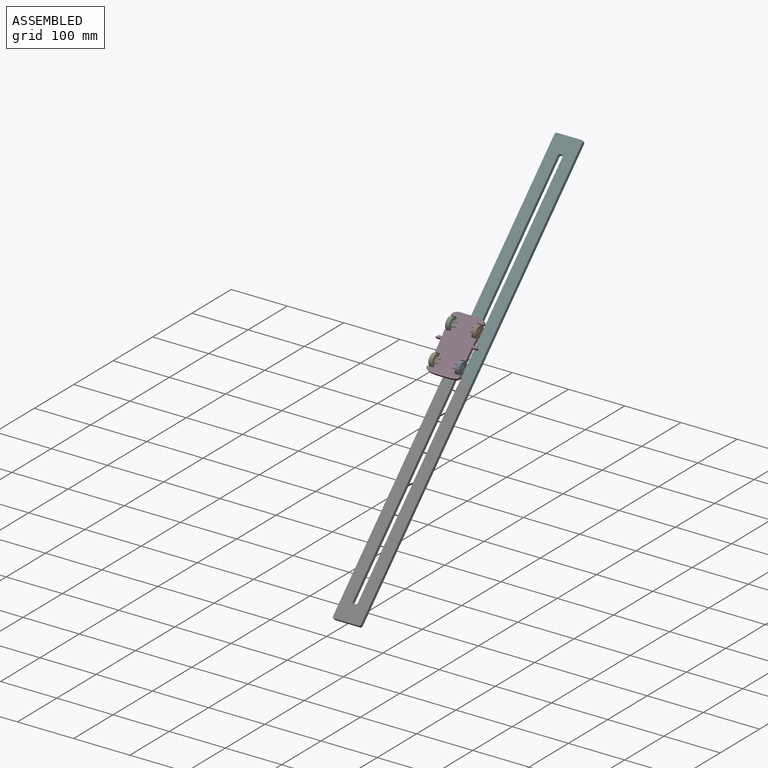
[diagram: assembled view]
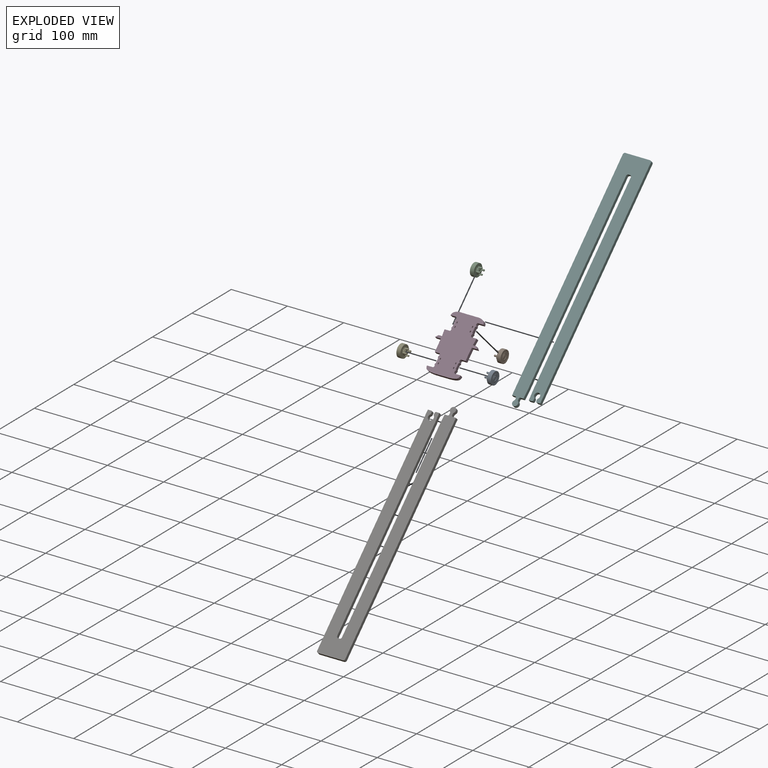
[diagram: exploded view]
GUIDED TOUR — MATED ASSEMBLY WITH SUBASSEMBLIES (Onshape document 0712574c2005b24f1d2a0907, AutoMate assembly 0712574c2005b24f1d2a0907_b35cb30149ad5a018dd089fb_e8988d4860a6e66e66fac730_default)

This assembly has 11 component occurrences arranged in 7 top-level units: 3 individual components plus 4 subassemblies (S0, S1, S2, S3). The tour has two levels: first the top level, where each subassembly is treated as one rigid unit; then each subassembly is toured internally in its own section (nesting deeper than one subassembly level is flattened into its subassembly's section).

Components are labeled P0..P10 across the whole record; subassembly units are labeled S0..S3. A mate is a constraint between two units; its type names the relative motion it leaves free:
  FASTENED — locks the two components together rigidly (no relative motion),
  PLANAR — leaves sliding in the plane through the listed point (normal = the listed direction) and rotation about that normal free,
  REVOLUTE — leaves rotation about the listed axis free (a hinge).
Axis/direction vectors are unit vectors and 'through' points are millimeter coordinates, both in the assembly's world frame.

TOP-LEVEL MATES (between units; each subassembly's internal mates are listed in its own section)
  1. FASTENED "Fastened 1": P10 <-> P7, direction (0.000, 0.708, 0.706) through (-13.13, -57.40, -266.34) mm
  2. PLANAR "Planar 7": P3 <-> P7, direction (1.000, 0.000, 0.000) through (-39.44, -55.57, -253.22) mm
  3. PLANAR "Planar 4": S2 <-> P3, direction (0.000, 0.708, 0.706) through (-74.77, -5.64, -203.47) mm
  4. PLANAR "Planar 3": P3 <-> S2, direction (-1.000, 0.000, 0.000) through (-76.07, -7.89, -201.22) mm
  5. PLANAR "Planar 6": P3 <-> S2, direction (0.000, -0.706, 0.708) through (-71.07, -9.66, -202.99) mm
  6. PLANAR "Planar 5": P3 <-> S1, direction (0.000, 0.706, -0.708) through (-58.26, -28.17, -230.39) mm
  7. PLANAR "Planar 2": S1 <-> P3, direction (0.000, 0.708, 0.706) through (-44.69, -3.40, -205.72) mm
  8. PLANAR "Planar 1": S1 <-> P3, direction (-1.000, 0.000, 0.000) through (-40.44, -9.19, -207.00) mm

TOP-LEVEL ASSEMBLY ORDER
  1. P10 — the base component [order verified]
  2. P7 [order verified]
  3. S0 [order verified]
  4. S3 [order verified]
  5. S1 [order verified]
  6. P3 [order verified]
  7. S2 [order verified]
(P3, P7 verified with a relaxed clearance tolerance: the source model stores slight part interference there.)
Order-tag legend:
  [order verified] — this step's position reverses a verified removal order: the component was checked to insert without passing through the ones already placed.

Of the 11 component occurrences, 6 carry the full construction recipe — the FeatureScript program that regenerates the part's solid from scratch; the rest are supplied as boundary geometry only. Each toured unit is shown spotlighted twice — assembled, then exploded with a leader line back to its socket (green = recipe-attached component, orange = geometry-only, blue = subassembly unit; the rest desaturated gray).
NOTE — document 2 of 2 of this assembly tour. The two overview renders and the header above are repeated from document 1; the component sections below continue where the previous document stopped.
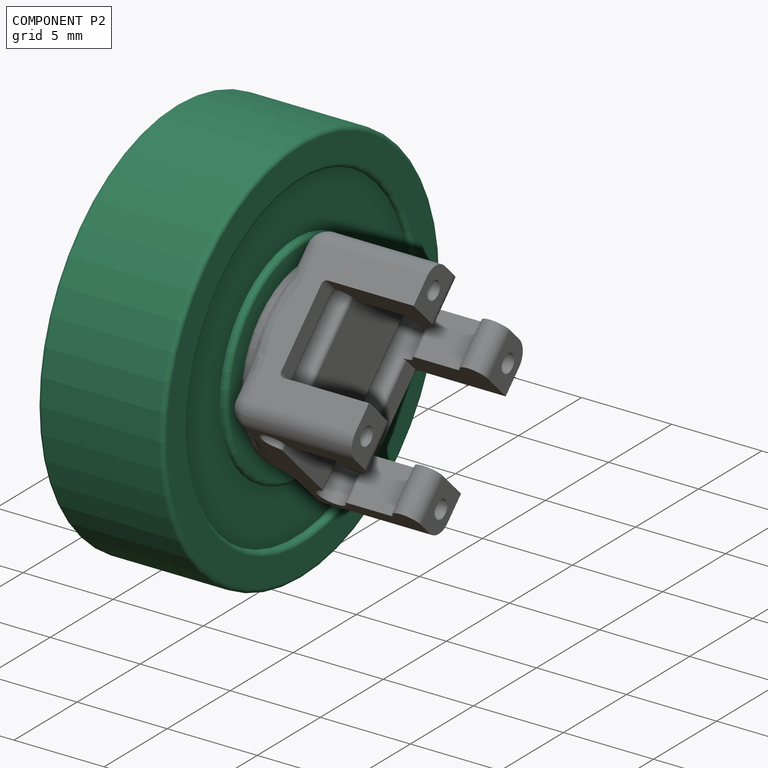
[diagram: component P2 — assembled]
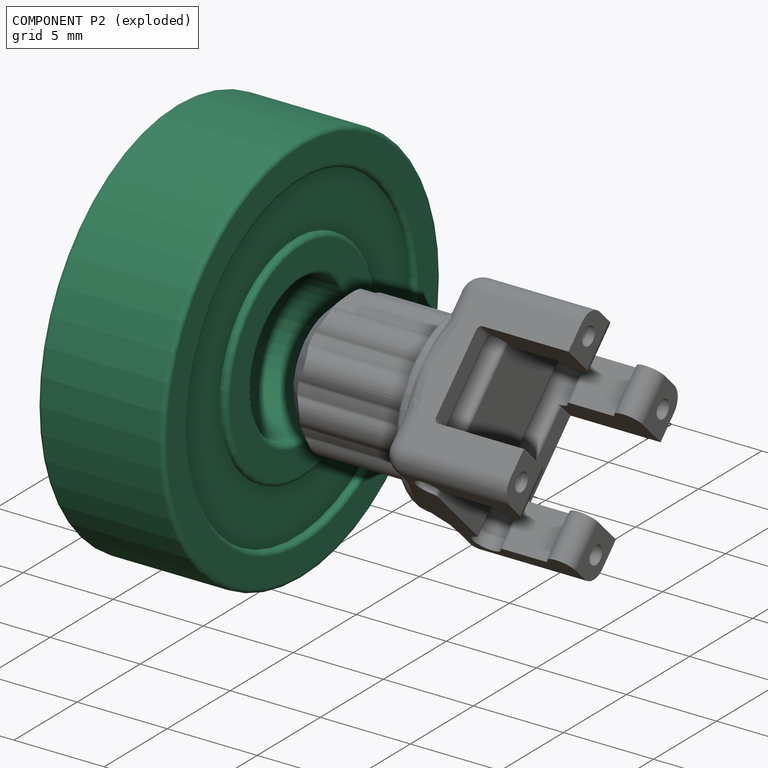
[diagram: component P2 — exploded]
COMPONENT P2 — recipe-attached (CADFS 00933879, mesh-verified: the recipe's output STEP matches this component's geometry to below the mesh-comparison resolution (tessellation chordal tolerance ~0.0478 mm)).
Held by: REVOLUTE mate "Revolute 1" to P5; REVOLUTE mate "Revolute 1" to P5.
Construction recipe (FeatureScript — the CAD program that rebuilds this solid; sketch coordinates are in the units given by the * unit suffixes, e.g. mm):

FeatureScript 1511;
import(path : "onshape/std/geometry.fs", version : "1511.0");
import(path : "onshape/std/common.fs", version : "1511.0");
const mm = millimeter;
const VERTEX = EntityType.VERTEX;
const EDGE = EntityType.EDGE;
const FACE = EntityType.FACE;
const BODY = EntityType.BODY;
function v(x, y){return vector(x, y);}
function OD(order){return orderDisambiguation(order);}
function OSD(set){return originalSetDisambiguation(set);}
function TD(topology){return topologyDisambiguation(topology);}
function TDD(query){return trueDependencyDisambiguation(query);}
function sQuery(a, b, c) {return sketchEntityQuery(a, b, c);}

annotation { "Feature Type Name" : "Feature", "Feature Type Description" : "" }
export const myFeature = defineFeature(function(context is Context, id is Id, definition is map)
    precondition{}
    {
        {
            var Q0;
            Q0=qCreatedBy(makeId("Top.planeOp"),FACE);
            var sketch = newSketch(context, id + "F0", { "sketchPlane" : qUnion([Q0])});
            skLineSegment(sketch, "E0", {"start": v(0, 63.35) * mm, "end": v(0, -63.35) * mm, "construction": true});
            skSolve(sketch);
        }
        {
            assignVariable(context, id + "F1", {"name" : "RadiusEdge", "anyValue" : .25});
        }
        {
            var Q0;
            Q0=qCreatedBy(makeId("Right.planeOp"),FACE);
            var sketch = newSketch(context, id + "F2", { "sketchPlane" : qUnion([Q0])});
            skLineSegment(sketch, "E1.bottom", {"start": v(3.5, 9) * mm, "end": v(3.12, 9) * mm});
            skLineSegment(sketch, "E1.top", {"start": v(3.5, 11) * mm, "end": v(-3.5, 11) * mm});
            skLineSegment(sketch, "E1.left", {"start": v(3.5, 9) * mm, "end": v(3.5, 11) * mm});
            skLineSegment(sketch, "E1.right", {"start": v(-3.5, 9) * mm, "end": v(-3.5, 11) * mm});
            skPoint(sketch, "E1.middle", {"position": v(0, 10) * mm});
            skLineSegment(sketch, "E2.left", {"start": v(3.12, 9) * mm, "end": v(3.13, 6) * mm});
            skLineSegment(sketch, "E2.right", {"start": v(-3.13, 9) * mm, "end": v(-3.12, 6) * mm});
            skPoint(sketch, "E2.middle", {"position": v(0, 7.5) * mm});
            skLineSegment(sketch, "E3.trimOffspring", {"start": v(-3.13, 9) * mm, "end": v(-3.5, 9) * mm});
            skLineSegment(sketch, "E4.bottom", {"start": v(3.5, 6) * mm, "end": v(3.13, 6) * mm});
            skLineSegment(sketch, "E4.top", {"start": v(3.5, 4) * mm, "end": v(-3.5, 4) * mm});
            skLineSegment(sketch, "E4.left", {"start": v(3.5, 6) * mm, "end": v(3.5, 4) * mm});
            skLineSegment(sketch, "E4.right", {"start": v(-3.5, 6) * mm, "end": v(-3.5, 4) * mm});
            skPoint(sketch, "E4.middle", {"position": v(0, 5) * mm});
            skLineSegment(sketch, "E5.trimOffspring", {"start": v(-3.12, 6) * mm, "end": v(-3.5, 6) * mm});
            skSolve(sketch);
        }
        {
            var Q0;
            Q0 = qSketchRegion(id + "F2", true);
            var Q1;
            Q1=sQuery(id+"F0.wireOp",EDGE,"E0");
            revolve(context, id + "F3", {"surfaceOperationType" : NewSurfaceOperationType.NEW, "entities" : qUnion([Q0]), "axis" : qUnion([Q1]), "revolveType" : RevolveType.FULL});
        }
        {
            var Q0;
            Q0=makeQuery(id+"F3.opRevolve","SWEPT_EDGE",EDGE,{"disambiguationData":[OSD([sQuery(id+"F2.wireOp",EDGE,"E1.top"),sQuery(id+"F2.wireOp",EDGE,"E1.right")])]});
            var Q1;
            Q1=makeQuery(id+"F3.opRevolve","SWEPT_EDGE",EDGE,{"disambiguationData":[OSD([sQuery(id+"F2.wireOp",EDGE,"E1.right"),sQuery(id+"F2.wireOp",EDGE,"E3.trimOffspring")])]});
            var Q2;
            Q2=makeQuery(id+"F3.opRevolve","SWEPT_EDGE",EDGE,{"disambiguationData":[OSD([sQuery(id+"F2.wireOp",EDGE,"E4.right"),sQuery(id+"F2.wireOp",EDGE,"E5.trimOffspring")])]});
            var Q3;
            Q3=makeQuery(id+"F3.opRevolve","SWEPT_EDGE",EDGE,{"disambiguationData":[OSD([sQuery(id+"F2.wireOp",EDGE,"E4.top"),sQuery(id+"F2.wireOp",EDGE,"E4.right")])]});
            var Q4;
            Q4=makeQuery(id+"F3.opRevolve","SWEPT_EDGE",EDGE,{"disambiguationData":[OSD([sQuery(id+"F2.wireOp",EDGE,"E4.top"),sQuery(id+"F2.wireOp",EDGE,"E4.left")])]});
            var Q5;
            Q5=makeQuery(id+"F3.opRevolve","SWEPT_EDGE",EDGE,{"disambiguationData":[OSD([sQuery(id+"F2.wireOp",EDGE,"E4.bottom"),sQuery(id+"F2.wireOp",EDGE,"E4.left")])]});
            var Q6;
            Q6=makeQuery(id+"F3.opRevolve","SWEPT_EDGE",EDGE,{"disambiguationData":[OSD([sQuery(id+"F2.wireOp",EDGE,"E1.bottom"),sQuery(id+"F2.wireOp",EDGE,"E1.left")])]});
            var Q7;
            Q7=makeQuery(id+"F3.opRevolve","SWEPT_EDGE",EDGE,{"disambiguationData":[OSD([sQuery(id+"F2.wireOp",EDGE,"E1.top"),sQuery(id+"F2.wireOp",EDGE,"E1.left")])]});
            fillet(context, id + "F4", {"entities" : qUnion([Q0, Q1, Q2, Q3, Q4, Q5, Q6, Q7]), "radius" : (getVariable(context, 'RadiusEdge')) * mm, "tangentPropagation" : true, "allowEdgeOverflow" : false});
        }
    });
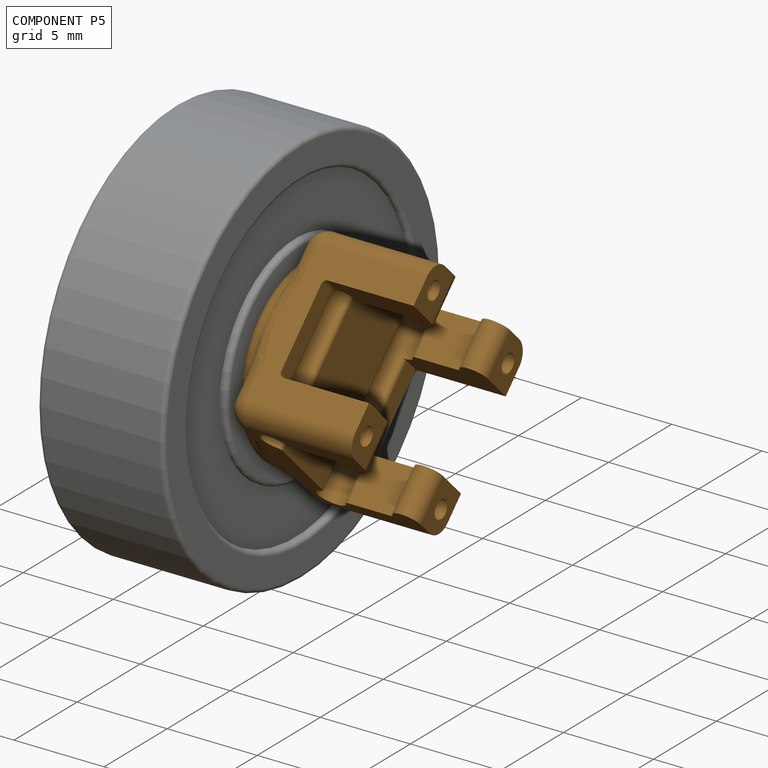
[diagram: component P5 — assembled]
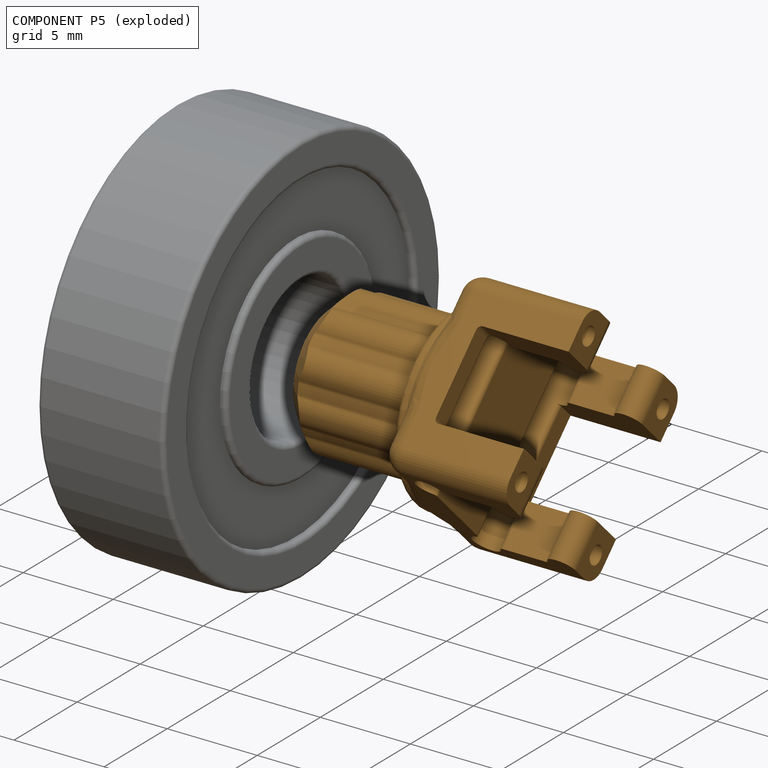
[diagram: component P5 — exploded]
COMPONENT P5 — geometry summary (no construction recipe available for this part):
  bounding box: 14.5 x 10.8 x 10.8 mm
  B-rep topology: 1 solid, 118 faces, 640 edges
  volume: 644 mm^3 (38% of its bounding box)
  symmetry: 2-fold rotationally symmetric about the z axis; mirror-symmetric across its x mid-plane, y mid-plane
Held by: REVOLUTE mate "Revolute 1" to P2; REVOLUTE mate "Revolute 1" to P2.
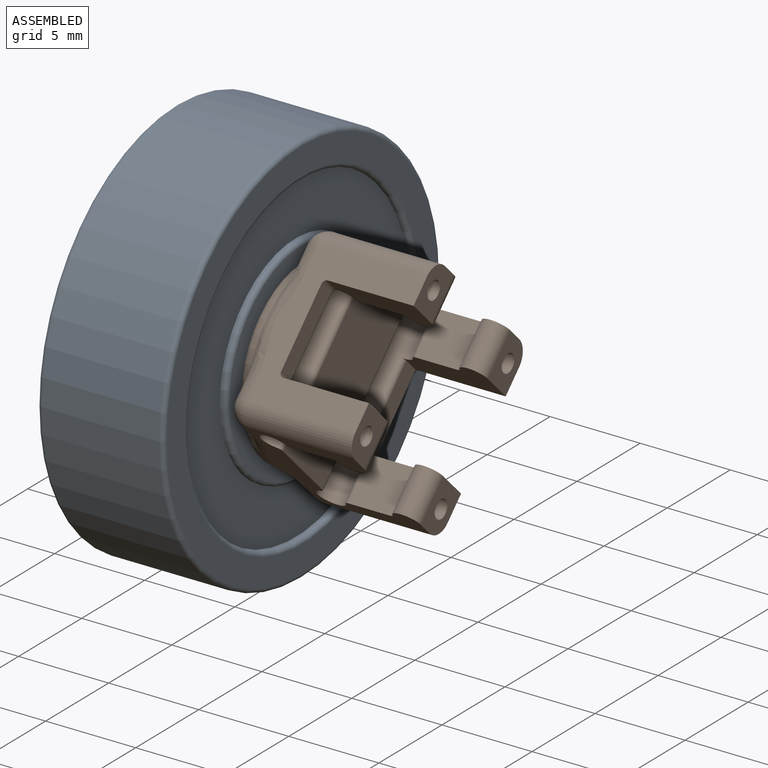
[diagram: subassembly S3 — assembled view]
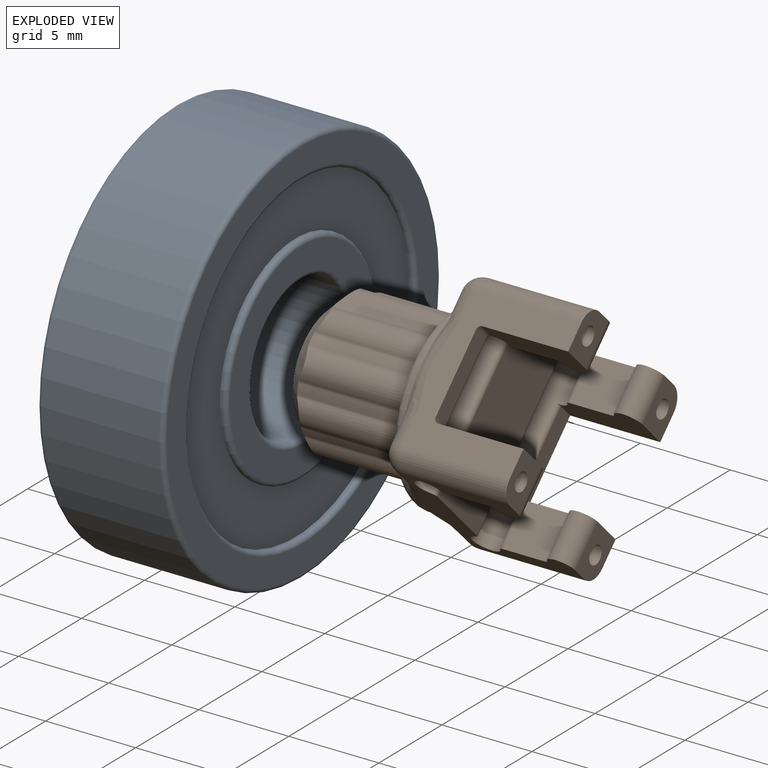
[diagram: subassembly S3 — exploded view]
SUBASSEMBLY S3 TOUR — 2 components, shown here in isolation at its own camera.

INTERNAL MATES
  1. REVOLUTE "Revolute 1": P4 <-> P9, axis (1.000, 0.000, 0.000) through (-78.57, -51.69, -249.35) mm
  2. REVOLUTE "Revolute 1": P4 <-> P9, axis (1.000, 0.000, 0.000) through (-78.57, -51.69, -249.35) mm

ASSEMBLY ORDER (within the subassembly)
  1. P4 — the base component [order heuristic]
  2. P9 [order heuristic]
Order-tag legend:
  [order heuristic] — this assembly is geometrically interlocked (no collision-free removal order exists), so components are listed in mate-graph order; insertion feasibility is not verified.
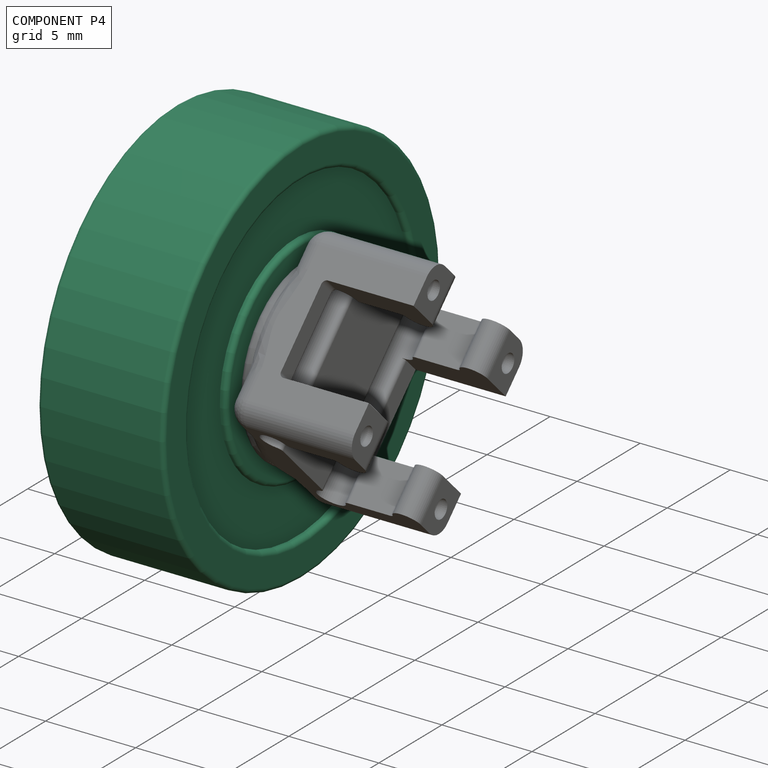
[diagram: component P4 — assembled]
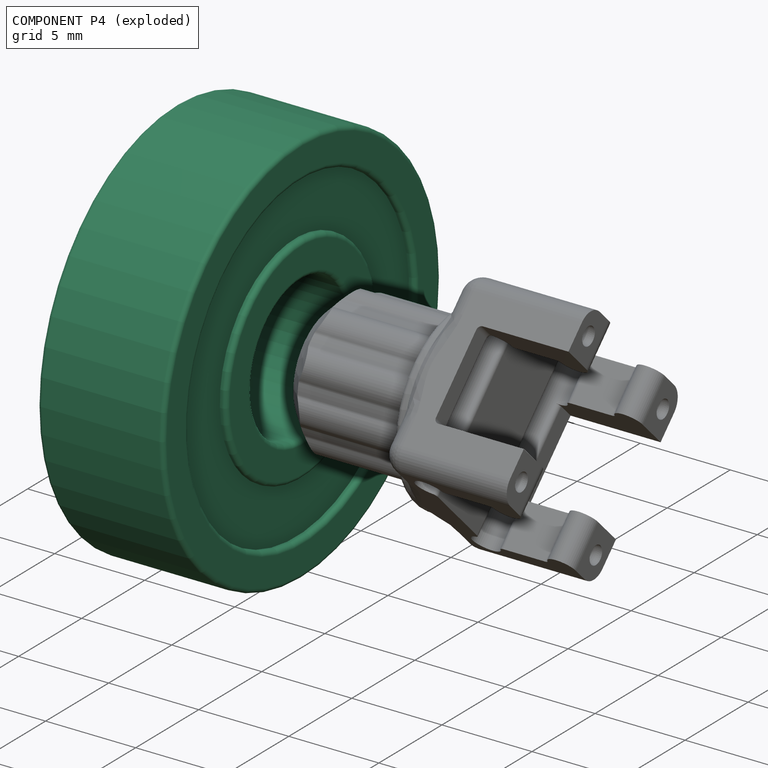
[diagram: component P4 — exploded]
COMPONENT P4 — recipe-attached (CADFS 00933879, mesh-verified: the recipe's output STEP matches this component's geometry to below the mesh-comparison resolution (tessellation chordal tolerance ~0.0478 mm)).
Held by: REVOLUTE mate "Revolute 1" to P9; REVOLUTE mate "Revolute 1" to P9.
Construction recipe (FeatureScript — the CAD program that rebuilds this solid; sketch coordinates are in the units given by the * unit suffixes, e.g. mm):

FeatureScript 1511;
import(path : "onshape/std/geometry.fs", version : "1511.0");
import(path : "onshape/std/common.fs", version : "1511.0");
const mm = millimeter;
const VERTEX = EntityType.VERTEX;
const EDGE = EntityType.EDGE;
const FACE = EntityType.FACE;
const BODY = EntityType.BODY;
function v(x, y){return vector(x, y);}
function OD(order){return orderDisambiguation(order);}
function OSD(set){return originalSetDisambiguation(set);}
function TD(topology){return topologyDisambiguation(topology);}
function TDD(query){return trueDependencyDisambiguation(query);}
function sQuery(a, b, c) {return sketchEntityQuery(a, b, c);}

annotation { "Feature Type Name" : "Feature", "Feature Type Description" : "" }
export const myFeature = defineFeature(function(context is Context, id is Id, definition is map)
    precondition{}
    {
        {
            var Q0;
            Q0=qCreatedBy(makeId("Top.planeOp"),FACE);
            var sketch = newSketch(context, id + "F0", { "sketchPlane" : qUnion([Q0])});
            skLineSegment(sketch, "E0", {"start": v(0, 63.35) * mm, "end": v(0, -63.35) * mm, "construction": true});
            skSolve(sketch);
        }
        {
            assignVariable(context, id + "F1", {"name" : "RadiusEdge", "anyValue" : .25});
        }
        {
            var Q0;
            Q0=qCreatedBy(makeId("Right.planeOp"),FACE);
            var sketch = newSketch(context, id + "F2", { "sketchPlane" : qUnion([Q0])});
            skLineSegment(sketch, "E1.bottom", {"start": v(3.5, 9) * mm, "end": v(3.12, 9) * mm});
            skLineSegment(sketch, "E1.top", {"start": v(3.5, 11) * mm, "end": v(-3.5, 11) * mm});
            skLineSegment(sketch, "E1.left", {"start": v(3.5, 9) * mm, "end": v(3.5, 11) * mm});
            skLineSegment(sketch, "E1.right", {"start": v(-3.5, 9) * mm, "end": v(-3.5, 11) * mm});
            skPoint(sketch, "E1.middle", {"position": v(0, 10) * mm});
            skLineSegment(sketch, "E2.left", {"start": v(3.12, 9) * mm, "end": v(3.13, 6) * mm});
            skLineSegment(sketch, "E2.right", {"start": v(-3.13, 9) * mm, "end": v(-3.12, 6) * mm});
            skPoint(sketch, "E2.middle", {"position": v(0, 7.5) * mm});
            skLineSegment(sketch, "E3.trimOffspring", {"start": v(-3.13, 9) * mm, "end": v(-3.5, 9) * mm});
            skLineSegment(sketch, "E4.bottom", {"start": v(3.5, 6) * mm, "end": v(3.13, 6) * mm});
            skLineSegment(sketch, "E4.top", {"start": v(3.5, 4) * mm, "end": v(-3.5, 4) * mm});
            skLineSegment(sketch, "E4.left", {"start": v(3.5, 6) * mm, "end": v(3.5, 4) * mm});
            skLineSegment(sketch, "E4.right", {"start": v(-3.5, 6) * mm, "end": v(-3.5, 4) * mm});
            skPoint(sketch, "E4.middle", {"position": v(0, 5) * mm});
            skLineSegment(sketch, "E5.trimOffspring", {"start": v(-3.12, 6) * mm, "end": v(-3.5, 6) * mm});
            skSolve(sketch);
        }
        {
            var Q0;
            Q0 = qSketchRegion(id + "F2", true);
            var Q1;
            Q1=sQuery(id+"F0.wireOp",EDGE,"E0");
            revolve(context, id + "F3", {"surfaceOperationType" : NewSurfaceOperationType.NEW, "entities" : qUnion([Q0]), "axis" : qUnion([Q1]), "revolveType" : RevolveType.FULL});
        }
        {
            var Q0;
            Q0=makeQuery(id+"F3.opRevolve","SWEPT_EDGE",EDGE,{"disambiguationData":[OSD([sQuery(id+"F2.wireOp",EDGE,"E1.top"),sQuery(id+"F2.wireOp",EDGE,"E1.right")])]});
            var Q1;
            Q1=makeQuery(id+"F3.opRevolve","SWEPT_EDGE",EDGE,{"disambiguationData":[OSD([sQuery(id+"F2.wireOp",EDGE,"E1.right"),sQuery(id+"F2.wireOp",EDGE,"E3.trimOffspring")])]});
            var Q2;
            Q2=makeQuery(id+"F3.opRevolve","SWEPT_EDGE",EDGE,{"disambiguationData":[OSD([sQuery(id+"F2.wireOp",EDGE,"E4.right"),sQuery(id+"F2.wireOp",EDGE,"E5.trimOffspring")])]});
            var Q3;
            Q3=makeQuery(id+"F3.opRevolve","SWEPT_EDGE",EDGE,{"disambiguationData":[OSD([sQuery(id+"F2.wireOp",EDGE,"E4.top"),sQuery(id+"F2.wireOp",EDGE,"E4.right")])]});
            var Q4;
            Q4=makeQuery(id+"F3.opRevolve","SWEPT_EDGE",EDGE,{"disambiguationData":[OSD([sQuery(id+"F2.wireOp",EDGE,"E4.top"),sQuery(id+"F2.wireOp",EDGE,"E4.left")])]});
            var Q5;
            Q5=makeQuery(id+"F3.opRevolve","SWEPT_EDGE",EDGE,{"disambiguationData":[OSD([sQuery(id+"F2.wireOp",EDGE,"E4.bottom"),sQuery(id+"F2.wireOp",EDGE,"E4.left")])]});
            var Q6;
            Q6=makeQuery(id+"F3.opRevolve","SWEPT_EDGE",EDGE,{"disambiguationData":[OSD([sQuery(id+"F2.wireOp",EDGE,"E1.bottom"),sQuery(id+"F2.wireOp",EDGE,"E1.left")])]});
            var Q7;
            Q7=makeQuery(id+"F3.opRevolve","SWEPT_EDGE",EDGE,{"disambiguationData":[OSD([sQuery(id+"F2.wireOp",EDGE,"E1.top"),sQuery(id+"F2.wireOp",EDGE,"E1.left")])]});
            fillet(context, id + "F4", {"entities" : qUnion([Q0, Q1, Q2, Q3, Q4, Q5, Q6, Q7]), "radius" : (getVariable(context, 'RadiusEdge')) * mm, "tangentPropagation" : true, "allowEdgeOverflow" : false});
        }
    });
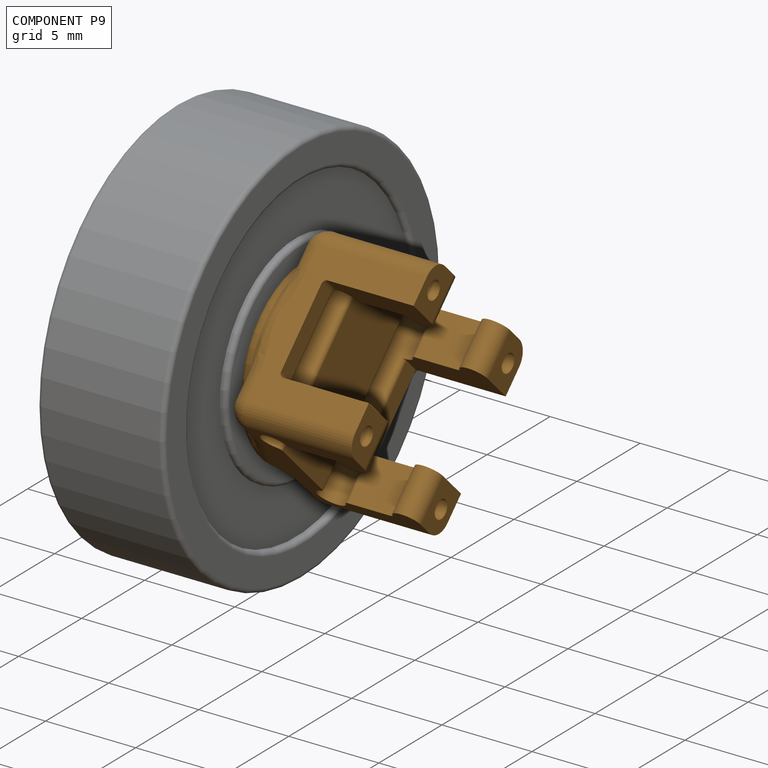
[diagram: component P9 — assembled]
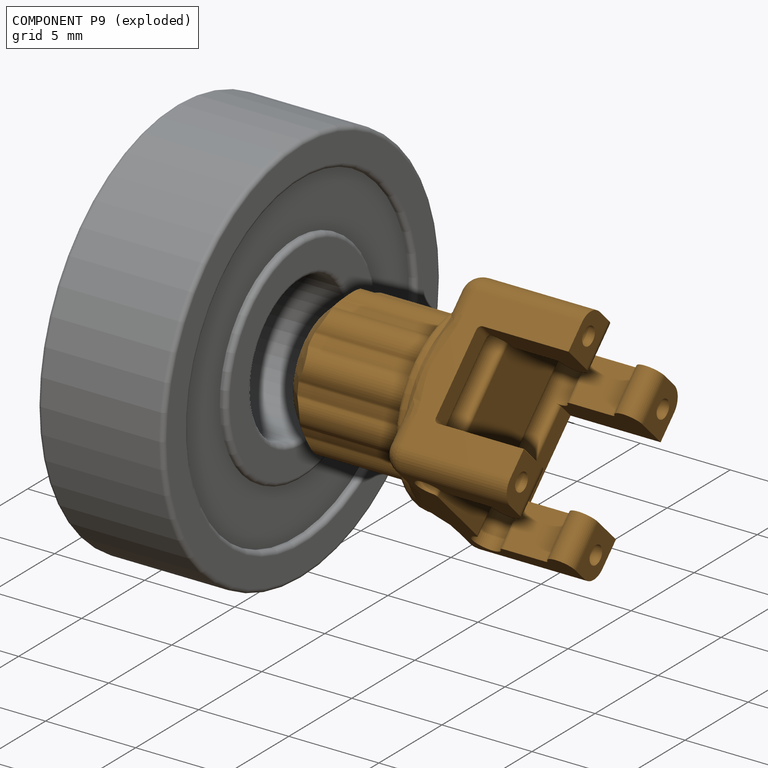
[diagram: component P9 — exploded]
COMPONENT P9 — geometry summary (no construction recipe available for this part):
  bounding box: 14.5 x 10.8 x 10.8 mm
  B-rep topology: 1 solid, 118 faces, 640 edges
  volume: 644 mm^3 (38% of its bounding box)
  symmetry: 2-fold rotationally symmetric about the z axis; mirror-symmetric across its x mid-plane, y mid-plane
Held by: REVOLUTE mate "Revolute 1" to P4; REVOLUTE mate "Revolute 1" to P4.
PROVENANCE & LICENSES
Assembly (occurrences, transforms, mates, per-part STEP geometry): AutoMate dataset, Zenodo record 7776208, CC0.
Construction recipes: CADFS (HuggingFace VladPyatov/CADFS, CC-BY-4.0, layered over the ABC dataset), FeatureScript reconstruction programs keyed by ABC model id.
Join: ABC meta listings map ABC model id -> Onshape documentId; within a shared document, parts are matched by geometric signature (bounding-box dims + volume at 0.1% relative tolerance, exact B-rep face/solid counts).
Verification: 6 of this assembly's 11 components carry a recipe attachment, and every attachment is mesh-verified: the CADFS STEP and the AutoMate member STEP were compared as meshes in their shared local frame (symmetric sampled-point-to-mesh distance); worst across the 6 attachments: below the mesh-comparison resolution (tessellation chordal tolerance ~0.627 mm) on a 418 mm part.
Renders: orthographic iso camera (az 35 / el 25); the floor grid conveys scale (grid pitch printed in each image; no ruler). In the exploded view each component is displaced by its stored offset vector: the offsets alone carry the explosion direction (mate normal/axis signs are not orientation cues and do not encode it), and separation distances are assigned per mate-chain, not proportionally to assembly-order depth.
